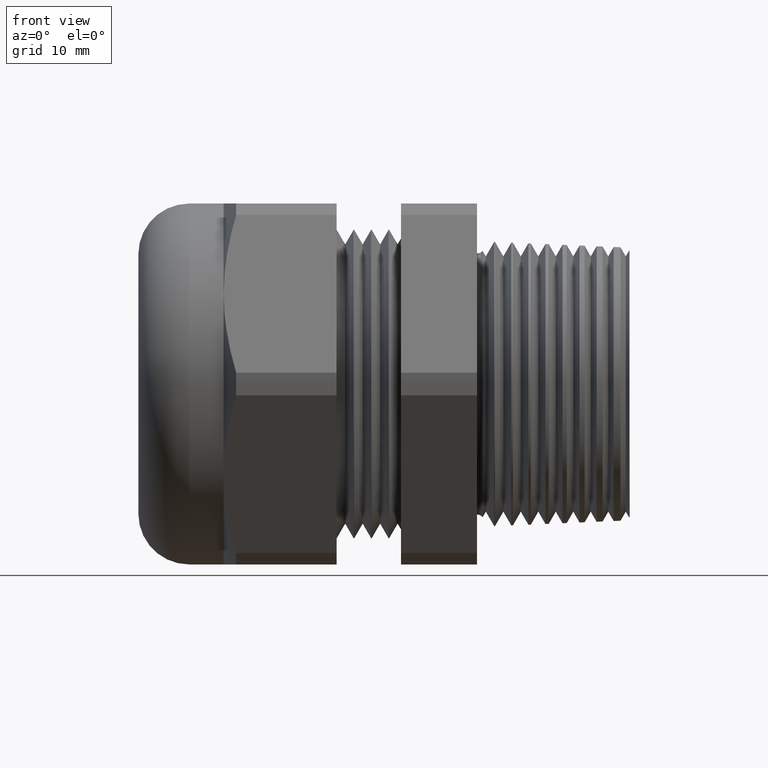
[diagram: clean part render]
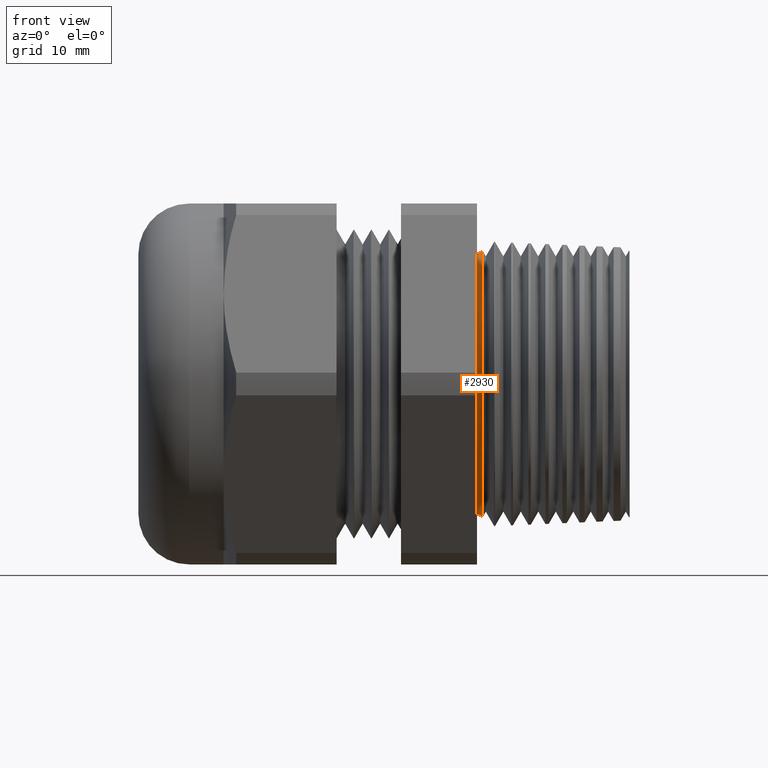
[diagram: same view with one face highlighted and labeled with its STEP entity id]
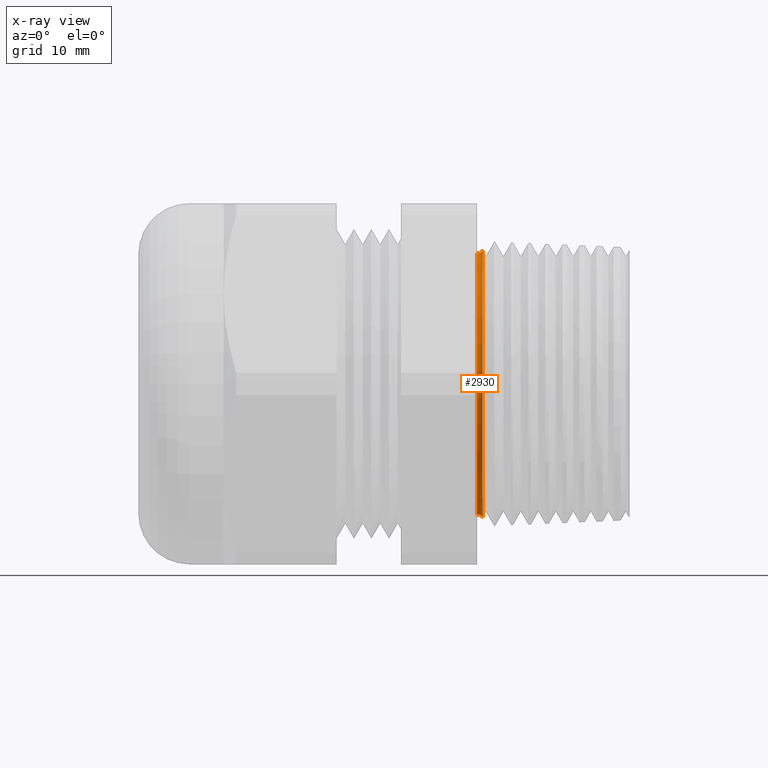
[diagram: x-ray of the same camera — body ghosted, the highlighted face saturated]
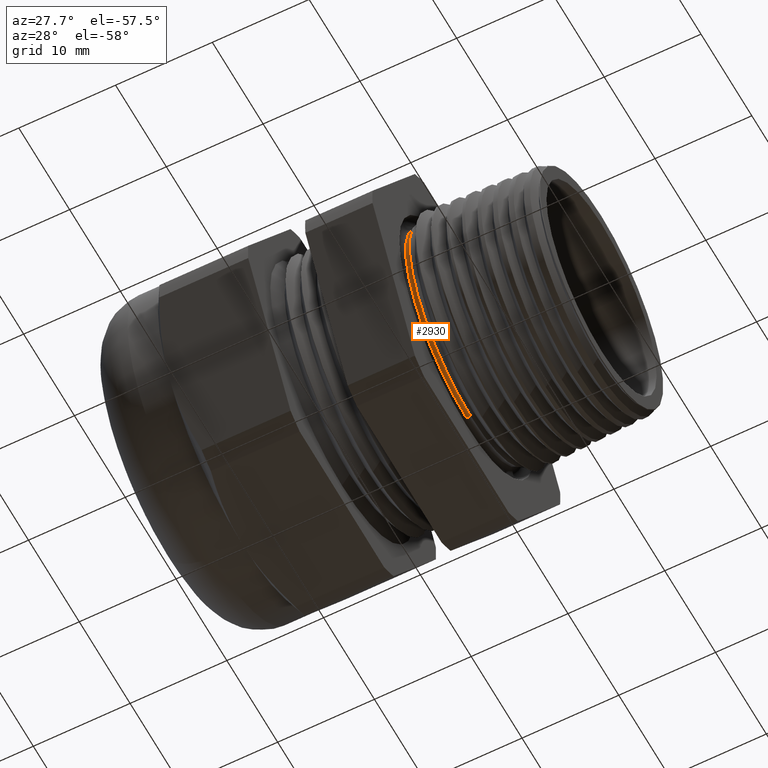
[diagram: same view with one face highlighted and labeled with its STEP entity id]
A machine part, front view. The second image highlights one B-rep face of the part: STEP entity #2930.
The next image is the same camera in x-ray: the body ghosted, the highlighted face saturated — about 0% of this face is hidden behind the body in this view.
A second angle (auxiliary view) of the same face is appended — the face is thin or edge-on in the first view.
In plain terms, the highlighted toroidal blend (fillet) surface has major radius 12.573 mm and minor (blend) radius 0.635 mm.
Its self-contained STEP definition (entity closure, byte-faithful):
#1126 = DIRECTION ( 'NONE',  ( 0.0000000000000000000, 0.0000000000000000000, -1.000000000000000000 ) ) ;
#1127 = DIRECTION ( 'NONE',  ( 1.000000000000000000, 0.0000000000000000000, 0.0000000000000000000 ) ) ;
#1128 = AXIS2_PLACEMENT_3D ( 'NONE', #1130, #1127, #1126 ) ;
#1129 = TOROIDAL_SURFACE ( 'NONE', #1128, 0.4950000000000000500, 0.02499999999999983500 ) ;
#1130 = CARTESIAN_POINT ( 'NONE',  ( 0.0000000000000000000, 0.0000000000000000000, 0.0000000000000000000 ) ) ;
#1136 = FACE_OUTER_BOUND ( 'NONE', #2968, .T. ) ;
#1137 = CARTESIAN_POINT ( 'NONE',  ( 0.02011669327523307000, 5.880225680154141000E-017, -0.4801568651670166100 ) ) ;
#1138 = CARTESIAN_POINT ( 'NONE',  ( -3.061616997868358500E-018, 0.0000000000000000000, -0.4700000000000002000 ) ) ;
#1224 = CIRCLE ( 'NONE', #1289, 0.02499999999999987000 ) ;
#1231 = CARTESIAN_POINT ( 'NONE',  ( -3.061616997868358500E-018, 5.755839955992562100E-017, 0.4700000000000002000 ) ) ;
#1242 = CARTESIAN_POINT ( 'NONE',  ( 0.02011669327523307000, 0.0000000000000000000, 0.4801568651670166100 ) ) ;
#1243 = DIRECTION ( 'NONE',  ( 0.0000000000000000000, 1.224646799147352200E-016, 1.000000000000000000 ) ) ;
#1244 = DIRECTION ( 'NONE',  ( 0.0000000000000000000, 1.000000000000000000, -1.224646799147353200E-016 ) ) ;
#1245 = CARTESIAN_POINT ( 'NONE',  ( 0.0000000000000000000, 6.062001655779398500E-017, 0.4950000000000000500 ) ) ;
#1246 = AXIS2_PLACEMENT_3D ( 'NONE', #1245, #1244, #1243 ) ;
#1247 = CIRCLE ( 'NONE', #1246, 0.02499999999999987000 ) ;
#1262 = DIRECTION ( 'NONE',  ( 0.0000000000000000000, 0.0000000000000000000, 1.000000000000000000 ) ) ;
#1263 = DIRECTION ( 'NONE',  ( 1.000000000000000000, 0.0000000000000000000, 0.0000000000000000000 ) ) ;
#1264 = CARTESIAN_POINT ( 'NONE',  ( 0.02011669327523307000, 0.0000000000000000000, 0.0000000000000000000 ) ) ;
#1265 = AXIS2_PLACEMENT_3D ( 'NONE', #1264, #1263, #1262 ) ;
#1266 = CIRCLE ( 'NONE', #1265, 0.4801568651670166100 ) ;
#1281 = DIRECTION ( 'NONE',  ( 0.0000000000000000000, 0.0000000000000000000, -1.000000000000000000 ) ) ;
#1282 = DIRECTION ( 'NONE',  ( 1.000000000000000000, 0.0000000000000000000, 0.0000000000000000000 ) ) ;
#1283 = CARTESIAN_POINT ( 'NONE',  ( -3.061616997868362800E-018, 0.0000000000000000000, 0.0000000000000000000 ) ) ;
#1284 = AXIS2_PLACEMENT_3D ( 'NONE', #1283, #1282, #1281 ) ;
#1285 = CIRCLE ( 'NONE', #1284, 0.4700000000000002000 ) ;
#1286 = DIRECTION ( 'NONE',  ( 0.0000000000000000000, 0.0000000000000000000, -1.000000000000000000 ) ) ;
#1287 = DIRECTION ( 'NONE',  ( 0.0000000000000000000, -1.000000000000000000, 0.0000000000000000000 ) ) ;
#1288 = CARTESIAN_POINT ( 'NONE',  ( 0.0000000000000000000, 0.0000000000000000000, -0.4950000000000000500 ) ) ;
#1289 = AXIS2_PLACEMENT_3D ( 'NONE', #1288, #1287, #1286 ) ;
#2925 = VERTEX_POINT ( 'NONE', #1138 ) ;
#2927 = VERTEX_POINT ( 'NONE', #1137 ) ;
#2930 = ADVANCED_FACE ( 'NONE', ( #1136 ), #1129, .F. ) ;
#2968 = EDGE_LOOP ( 'NONE', ( #2979, #2980, #2992, #2993 ) ) ;
#2971 = EDGE_CURVE ( 'NONE', #2975, #2986, #1247, .T. ) ;
#2975 = VERTEX_POINT ( 'NONE', #1242 ) ;
#2979 = ORIENTED_EDGE ( 'NONE', *, *, #2971, .T. ) ;
#2980 = ORIENTED_EDGE ( 'NONE', *, *, #2990, .T. ) ;
#2986 = VERTEX_POINT ( 'NONE', #1231 ) ;
#2989 = EDGE_CURVE ( 'NONE', #2927, #2925, #1224, .T. ) ;
#2990 = EDGE_CURVE ( 'NONE', #2986, #2925, #1285, .T. ) ;
#2992 = ORIENTED_EDGE ( 'NONE', *, *, #2989, .F. ) ;
#2993 = ORIENTED_EDGE ( 'NONE', *, *, #3000, .F. ) ;
#3000 = EDGE_CURVE ( 'NONE', #2975, #2927, #1266, .T. ) ;